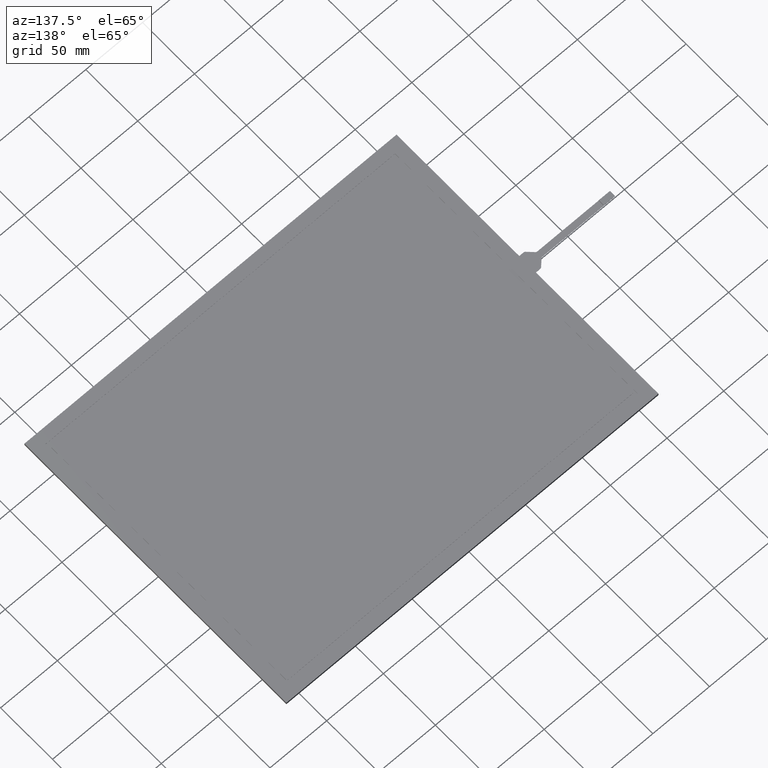
[diagram: clean part render]
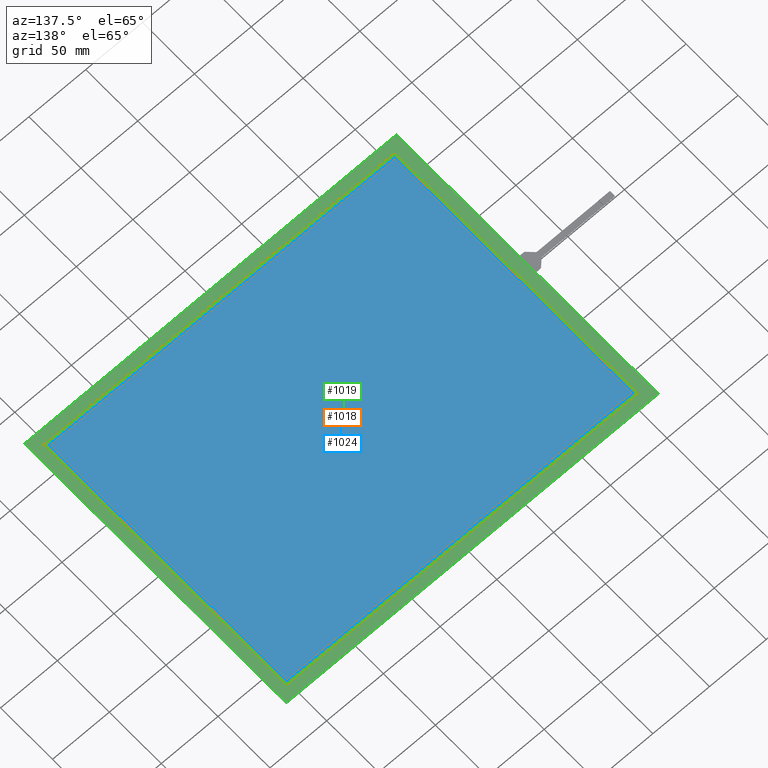
[diagram: same view with three faces highlighted in distinct colors, each labeled with its STEP entity id]
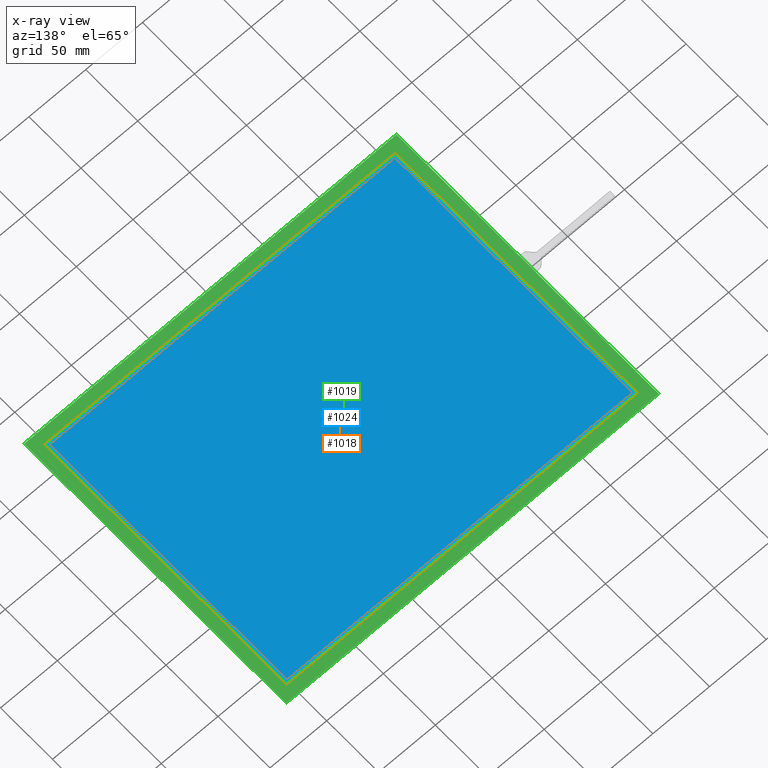
[diagram: x-ray of the same camera — body ghosted, the three highlighted faces saturated]
A machine part, auxiliary view with three faces highlighted in distinct colors.
The next image is the same camera in x-ray (body ghosted, the three faces saturated) — at least one of them is partly hidden behind the body in this view.
Their STEP definitions:

[orange] entity #1018 — the highlighted planar face has unit normal (0, 0, -1).
#46=FACE_BOUND('',#189,.T.);
#86=PLANE('',#1101);
#137=FACE_OUTER_BOUND('',#188,.T.);
#188=EDGE_LOOP('',(#925,#926,#927,#928));
#189=EDGE_LOOP('',(#929,#930,#931,#932));
#291=LINE('',#1576,#417);
#295=LINE('',#1583,#421);
#298=LINE('',#1589,#424);
#300=LINE('',#1592,#426);
#303=LINE('',#1600,#429);
#307=LINE('',#1607,#433);
#310=LINE('',#1613,#436);
#312=LINE('',#1616,#438);
#417=VECTOR('',#1299,10.);
#421=VECTOR('',#1305,10.);
#424=VECTOR('',#1310,10.);
#426=VECTOR('',#1314,10.);
#429=VECTOR('',#1319,10.);
#433=VECTOR('',#1325,10.);
#436=VECTOR('',#1330,10.);
#438=VECTOR('',#1334,10.);
#533=VERTEX_POINT('',#1573);
#534=VERTEX_POINT('',#1575);
#536=VERTEX_POINT('',#1581);
#538=VERTEX_POINT('',#1587);
#541=VERTEX_POINT('',#1597);
#542=VERTEX_POINT('',#1599);
#544=VERTEX_POINT('',#1605);
#546=VERTEX_POINT('',#1611);
#659=EDGE_CURVE('',#533,#534,#291,.T.);
#663=EDGE_CURVE('',#536,#533,#295,.T.);
#666=EDGE_CURVE('',#538,#536,#298,.T.);
#668=EDGE_CURVE('',#534,#538,#300,.T.);
#671=EDGE_CURVE('',#541,#542,#303,.T.);
#675=EDGE_CURVE('',#544,#541,#307,.T.);
#678=EDGE_CURVE('',#546,#544,#310,.T.);
#680=EDGE_CURVE('',#542,#546,#312,.T.);
#925=ORIENTED_EDGE('',*,*,#680,.F.);
#926=ORIENTED_EDGE('',*,*,#671,.F.);
#927=ORIENTED_EDGE('',*,*,#675,.F.);
#928=ORIENTED_EDGE('',*,*,#678,.F.);
#929=ORIENTED_EDGE('',*,*,#668,.F.);
#930=ORIENTED_EDGE('',*,*,#659,.F.);
#931=ORIENTED_EDGE('',*,*,#663,.F.);
#932=ORIENTED_EDGE('',*,*,#666,.F.);
#1018=ADVANCED_FACE('',(#137,#46),#86,.F.);
#1101=AXIS2_PLACEMENT_3D('',#1617,#1335,#1336);
#1299=DIRECTION('',(1.,0.,0.));
#1305=DIRECTION('',(0.,-1.,0.));
#1310=DIRECTION('',(-1.,0.,0.));
#1314=DIRECTION('',(0.,1.,0.));
#1319=DIRECTION('',(-1.52476981922768E-16,1.,0.));
#1325=DIRECTION('',(-1.,-1.1497455271199E-16,0.));
#1330=DIRECTION('',(7.62384909613841E-17,-1.,0.));
#1334=DIRECTION('',(1.,-5.74872763559952E-17,0.));
#1335=DIRECTION('center_axis',(0.,0.,-1.));
#1336=DIRECTION('ref_axis',(-1.,0.,0.));
#1573=CARTESIAN_POINT('',(-152.5,-114.5,-0.1));
#1575=CARTESIAN_POINT('',(152.5,-114.5,-0.1));
#1576=CARTESIAN_POINT('',(152.5,-114.5,-0.1));
#1581=CARTESIAN_POINT('',(-152.5,114.5,-0.1));
#1583=CARTESIAN_POINT('',(-152.5,-114.5,-0.1));
#1587=CARTESIAN_POINT('',(152.5,114.5,-0.1));
#1589=CARTESIAN_POINT('',(-152.5,114.5,-0.1));
#1592=CARTESIAN_POINT('',(152.5,114.5,-0.1));
#1597=CARTESIAN_POINT('',(-154.5,-116.5,-0.1));
#1599=CARTESIAN_POINT('',(-154.5,116.5,-0.1));
#1600=CARTESIAN_POINT('',(-154.5,116.5,-0.1));
#1605=CARTESIAN_POINT('',(154.5,-116.5,-0.1));
#1607=CARTESIAN_POINT('',(-154.5,-116.5,-0.1));
#1611=CARTESIAN_POINT('',(154.5,116.5,-0.1));
#1613=CARTESIAN_POINT('',(154.5,-116.5,-0.1));
#1616=CARTESIAN_POINT('',(154.5,116.5,-0.1));
#1617=CARTESIAN_POINT('Origin',(-3.5527136788005E-14,1.77635683940025E-14,
-0.1));

[blue] entity #1024 — the highlighted planar face has unit normal (0, 0, 1).
#92=PLANE('',#1107);
#143=FACE_OUTER_BOUND('',#197,.T.);
#197=EDGE_LOOP('',(#961,#962,#963,#964));
#289=LINE('',#1572,#415);
#293=LINE('',#1580,#419);
#296=LINE('',#1586,#422);
#299=LINE('',#1591,#425);
#415=VECTOR('',#1297,10.);
#419=VECTOR('',#1303,10.);
#422=VECTOR('',#1308,10.);
#425=VECTOR('',#1313,10.);
#531=VERTEX_POINT('',#1570);
#532=VERTEX_POINT('',#1571);
#535=VERTEX_POINT('',#1579);
#537=VERTEX_POINT('',#1585);
#657=EDGE_CURVE('',#531,#532,#289,.T.);
#661=EDGE_CURVE('',#535,#531,#293,.T.);
#664=EDGE_CURVE('',#537,#535,#296,.T.);
#667=EDGE_CURVE('',#532,#537,#299,.T.);
#961=ORIENTED_EDGE('',*,*,#657,.T.);
#962=ORIENTED_EDGE('',*,*,#667,.T.);
#963=ORIENTED_EDGE('',*,*,#664,.T.);
#964=ORIENTED_EDGE('',*,*,#661,.T.);
#1024=ADVANCED_FACE('',(#143),#92,.T.);
#1107=AXIS2_PLACEMENT_3D('',#1643,#1359,#1360);
#1297=DIRECTION('',(1.,0.,0.));
#1303=DIRECTION('',(0.,-1.,0.));
#1308=DIRECTION('',(-1.,0.,0.));
#1313=DIRECTION('',(0.,1.,0.));
#1359=DIRECTION('center_axis',(0.,0.,1.));
#1360=DIRECTION('ref_axis',(1.,0.,0.));
#1570=CARTESIAN_POINT('',(-152.5,-114.5,0.));
#1571=CARTESIAN_POINT('',(152.5,-114.5,0.));
#1572=CARTESIAN_POINT('',(-76.5,-114.5,0.));
#1579=CARTESIAN_POINT('',(-152.5,114.5,0.));
#1580=CARTESIAN_POINT('',(-152.5,57.25,0.));
#1585=CARTESIAN_POINT('',(152.5,114.5,0.));
#1586=CARTESIAN_POINT('',(76.,114.5,0.));
#1591=CARTESIAN_POINT('',(152.5,-57.25,0.));
#1643=CARTESIAN_POINT('Origin',(-0.500000000000025,4.44089209850063E-14,
0.));

[green] entity #1019 — the highlighted planar face has unit normal (0, 0, 1).
#47=FACE_BOUND('',#191,.T.);
#87=PLANE('',#1102);
#138=FACE_OUTER_BOUND('',#190,.T.);
#190=EDGE_LOOP('',(#933,#934,#935,#936));
#191=EDGE_LOOP('',(#937,#938,#939,#940));
#301=LINE('',#1596,#427);
#305=LINE('',#1604,#431);
#308=LINE('',#1610,#434);
#311=LINE('',#1615,#437);
#313=LINE('',#1621,#439);
#314=LINE('',#1623,#440);
#315=LINE('',#1625,#441);
#316=LINE('',#1626,#442);
#427=VECTOR('',#1317,10.);
#431=VECTOR('',#1323,10.);
#434=VECTOR('',#1328,10.);
#437=VECTOR('',#1333,10.);
#439=VECTOR('',#1339,10.);
#440=VECTOR('',#1340,10.);
#441=VECTOR('',#1341,10.);
#442=VECTOR('',#1342,10.);
#539=VERTEX_POINT('',#1594);
#540=VERTEX_POINT('',#1595);
#543=VERTEX_POINT('',#1603);
#545=VERTEX_POINT('',#1609);
#547=VERTEX_POINT('',#1619);
#548=VERTEX_POINT('',#1620);
#549=VERTEX_POINT('',#1622);
#550=VERTEX_POINT('',#1624);
#669=EDGE_CURVE('',#539,#540,#301,.T.);
#673=EDGE_CURVE('',#543,#539,#305,.T.);
#676=EDGE_CURVE('',#545,#543,#308,.T.);
#679=EDGE_CURVE('',#540,#545,#311,.T.);
#681=EDGE_CURVE('',#547,#548,#313,.T.);
#682=EDGE_CURVE('',#548,#549,#314,.T.);
#683=EDGE_CURVE('',#549,#550,#315,.T.);
#684=EDGE_CURVE('',#550,#547,#316,.T.);
#933=ORIENTED_EDGE('',*,*,#681,.T.);
#934=ORIENTED_EDGE('',*,*,#682,.T.);
#935=ORIENTED_EDGE('',*,*,#683,.T.);
#936=ORIENTED_EDGE('',*,*,#684,.T.);
#937=ORIENTED_EDGE('',*,*,#669,.T.);
#938=ORIENTED_EDGE('',*,*,#679,.T.);
#939=ORIENTED_EDGE('',*,*,#676,.T.);
#940=ORIENTED_EDGE('',*,*,#673,.T.);
#1019=ADVANCED_FACE('',(#138,#47),#87,.T.);
#1102=AXIS2_PLACEMENT_3D('',#1618,#1337,#1338);
#1317=DIRECTION('',(-1.52476981922768E-16,1.,0.));
#1323=DIRECTION('',(-1.,-1.1497455271199E-16,0.));
#1328=DIRECTION('',(7.62384909613841E-17,-1.,0.));
#1333=DIRECTION('',(1.,-5.74872763559952E-17,0.));
#1337=DIRECTION('center_axis',(0.,0.,1.));
#1338=DIRECTION('ref_axis',(1.,0.,0.));
#1339=DIRECTION('',(-1.,0.,0.));
#1340=DIRECTION('',(1.40980701539702E-16,-1.,0.));
#1341=DIRECTION('',(1.,1.62471662140267E-16,0.));
#1342=DIRECTION('',(0.,1.,0.));
#1594=CARTESIAN_POINT('',(-154.5,-116.5,0.));
#1595=CARTESIAN_POINT('',(-154.5,116.5,0.));
#1596=CARTESIAN_POINT('',(-154.5,-58.25,0.));
#1603=CARTESIAN_POINT('',(154.5,-116.5,0.));
#1604=CARTESIAN_POINT('',(77.,-116.5,0.));
#1609=CARTESIAN_POINT('',(154.5,116.5,0.));
#1610=CARTESIAN_POINT('',(154.5,58.2500000000001,0.));
#1615=CARTESIAN_POINT('',(-77.5,116.5,0.));
#1618=CARTESIAN_POINT('Origin',(-0.500000000000025,4.44089209850063E-14,
0.));
#1619=CARTESIAN_POINT('',(163.5,126.,0.));
#1620=CARTESIAN_POINT('',(-164.5,126.,0.));
#1621=CARTESIAN_POINT('',(163.5,126.,0.));
#1622=CARTESIAN_POINT('',(-164.5,-126.,0.));
#1623=CARTESIAN_POINT('',(-164.5,126.,0.));
#1624=CARTESIAN_POINT('',(163.5,-126.,0.));
#1625=CARTESIAN_POINT('',(-164.5,-126.,0.));
#1626=CARTESIAN_POINT('',(163.5,-126.,0.));